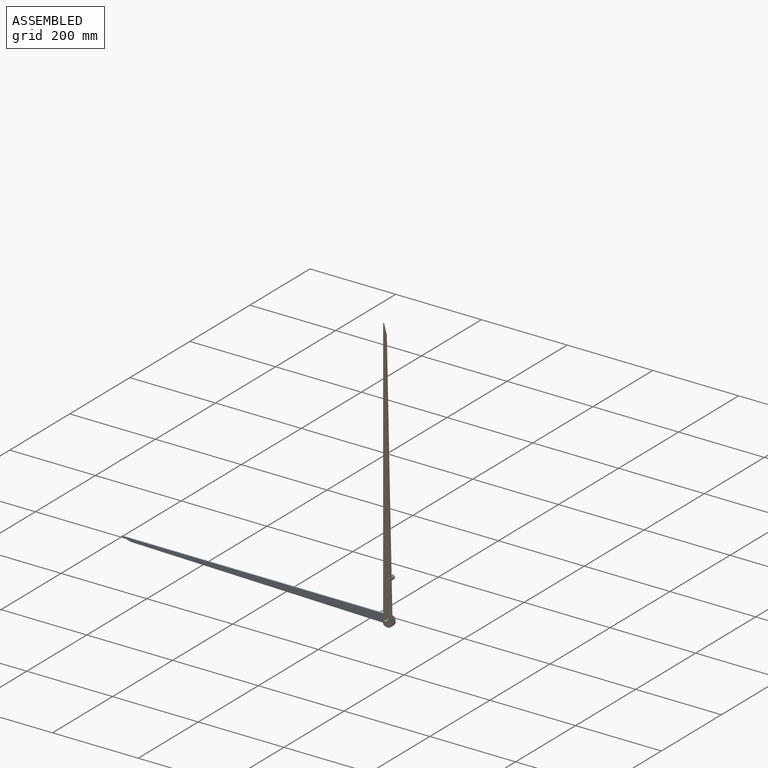
[diagram: assembled view]
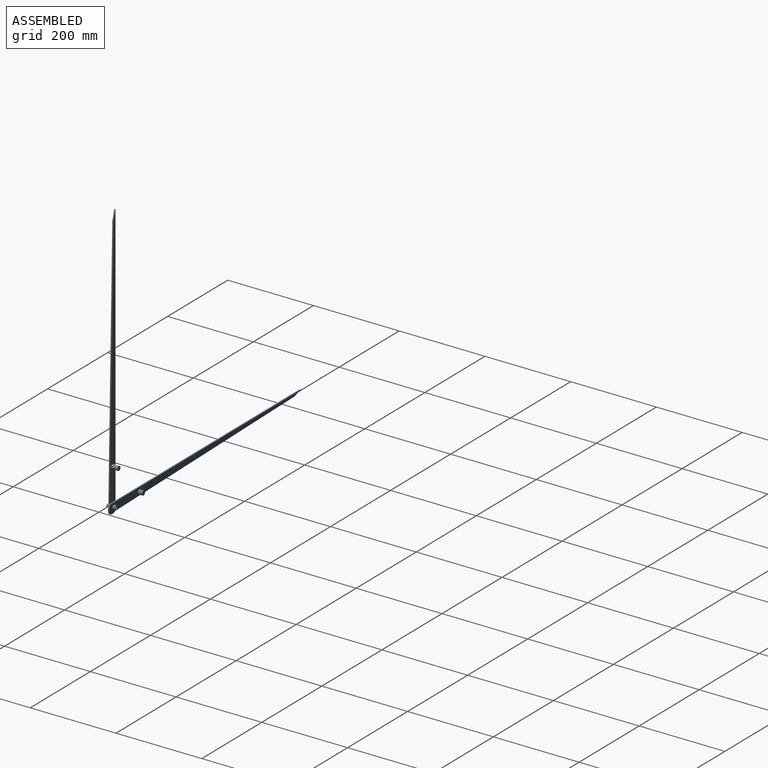
[diagram: assembled view, second angle]
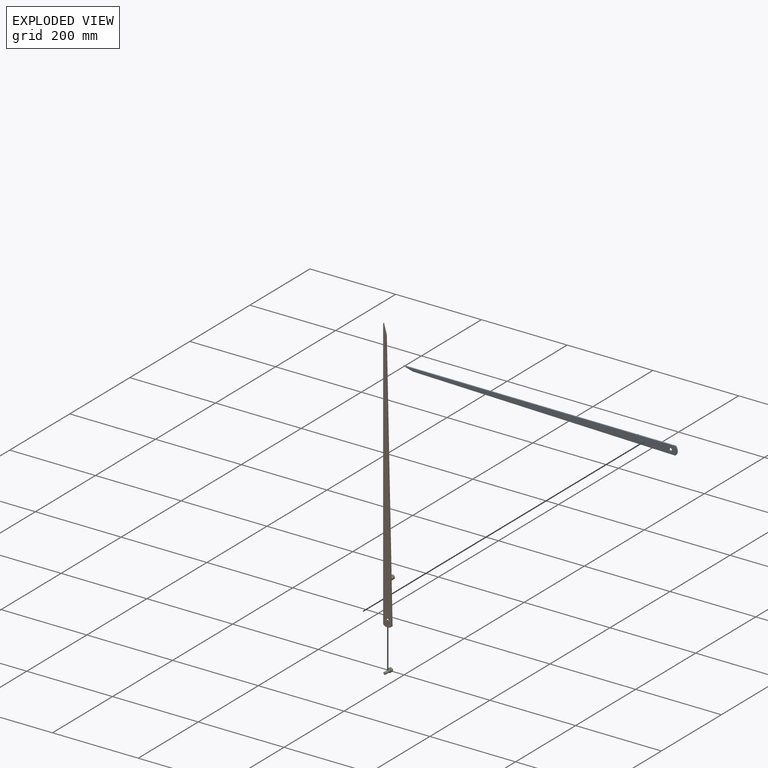
[diagram: exploded view]
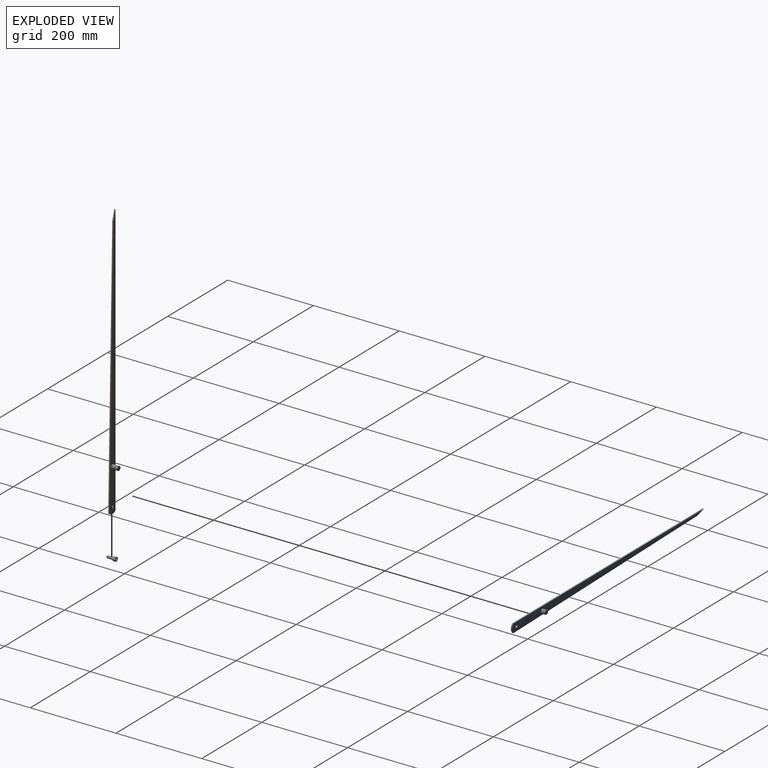
[diagram: exploded view, second angle]
ASSEMBLY  parts=3 mates=2
PART A: 9 faces, bbox 638.7x13x20 mm
  f0: plane 634.58x3mm, normal (0,0,1), area 1903.7mm2, adj f1,f3,f4,f5
  f1: plane 22.42x6.46mm, normal (-0.28,0,-0.96), area 70mm2, adj f0,f2,f4,f5
  f2: plane 612.17x13.53mm, normal (-0.02,0,-1), area 1837mm2, adj f1,f3,f4,f5
  f3: cylinder r=14.17mm len=19.99mm, axis (0,1,0), area 66.6mm2, adj f0,f2,f4,f5
  f4: plane 638.71x19.99mm, normal (0,-1,0), area 8191.7mm2, adj f0,f1,f2,f3,f6
  f5: plane 638.71x19.99mm, normal (0,1,0), area 8113.1mm2, adj f0,f1,f2,f3,f6,f7
  f6: cylinder r=3.25mm len=6.5mm, axis (0,-1,0), area 61.3mm2, adj f4,f5
  f7: cylinder r=5mm len=10mm, axis (0,-1,0), area 314.2mm2, adj f5,f8
  f8: plane 10x10mm, normal (0,1,0), area 78.5mm2, adj f7
PART B: 9 faces, bbox 638.7x18x20 mm
  f0: plane 22.42x6.46mm, normal (-0.28,0,0.96), area 70mm2, adj f1,f3,f4,f5
  f1: plane 634.58x3mm, normal (0,0,-1), area 1903.7mm2, adj f0,f2,f4,f5
  f2: cylinder r=14.17mm len=19.99mm, axis (0,1,0), area 66.6mm2, adj f1,f3,f4,f5
  f3: plane 612.17x13.53mm, normal (-0.02,0,1), area 1837mm2, adj f0,f2,f4,f5
  f4: plane 638.71x19.99mm, normal (0,-1,0), area 8191.7mm2, adj f0,f1,f2,f3,f6
  f5: plane 638.71x19.99mm, normal (0,1,0), area 8113.1mm2, adj f0,f1,f2,f3,f6,f7
  f6: cylinder r=3.25mm len=6.5mm, axis (0,-1,0), area 61.3mm2, adj f4,f5
  f7: cylinder r=5mm len=15mm, axis (0,-1,0), area 471.2mm2, adj f5,f8
  f8: plane 10x10mm, normal (0,1,0), area 78.5mm2, adj f7
PART C: 13 faces, bbox 9.8x9.8x22 mm
  f0: plane 9.8x9.8mm, normal (0,0,-1), area 53.8mm2, adj f3,f5,f6,f7,f8,f9,f10
  f1: cylinder r=3mm len=15mm, axis (0,0,-1), area 282.7mm2, adj f4,f12
  f2: plane 4x4mm, normal (0,0,1), area 12.6mm2, adj f12
  f3: cylinder r=4.9mm len=9.8mm, axis (0,0,1), area 184.7mm2, adj f0,f4
  f4: plane 9.8x9.8mm, normal (0,0,1), area 47.2mm2, adj f1,f3
  f5: plane 4x2.5mm, normal (0.87,0.5,0), area 11.5mm2, adj f0,f6,f10,f11
  f6: plane 4x2.5mm, normal (0.87,-0.5,0), area 11.5mm2, adj f0,f5,f7,f11
  f7: plane 4x2.89mm, normal (0,-1,0), area 11.5mm2, adj f0,f6,f8,f11
  f8: plane 4x2.5mm, normal (-0.87,-0.5,0), area 11.5mm2, adj f0,f7,f9,f11
  f9: plane 4x2.5mm, normal (-0.87,0.5,0), area 11.5mm2, adj f0,f8,f10,f11
  f10: plane 4x2.89mm, normal (0,1,0), area 11.5mm2, adj f0,f5,f9,f11
  f11: plane 5.77x5mm, normal (0,0,-1), area 21.7mm2, adj f5,f6,f7,f8,f9,f10
  f12: cone r=2mm half-angle=45deg, axis (0,0,-1), area 22.2mm2, adj f1,f2
PLACE A t=(-34.99,-33.2,-182.27)mm
PLACE B rot(axis=(0,1,0),90deg) t=(578.56,-36.2,431.27)mm
PLACE C rot(axis=(1,0,0),90deg) t=(588.55,-33.2,-192.27)mm
MATE planar C.f1 <-> A.f5  axis (0,-1,0) through (588.55,-33.2,-192.27)mm
MATE planar B.f5 <-> A.f4  axis (0,1,0) through (585.68,-36.2,54.56)mm
